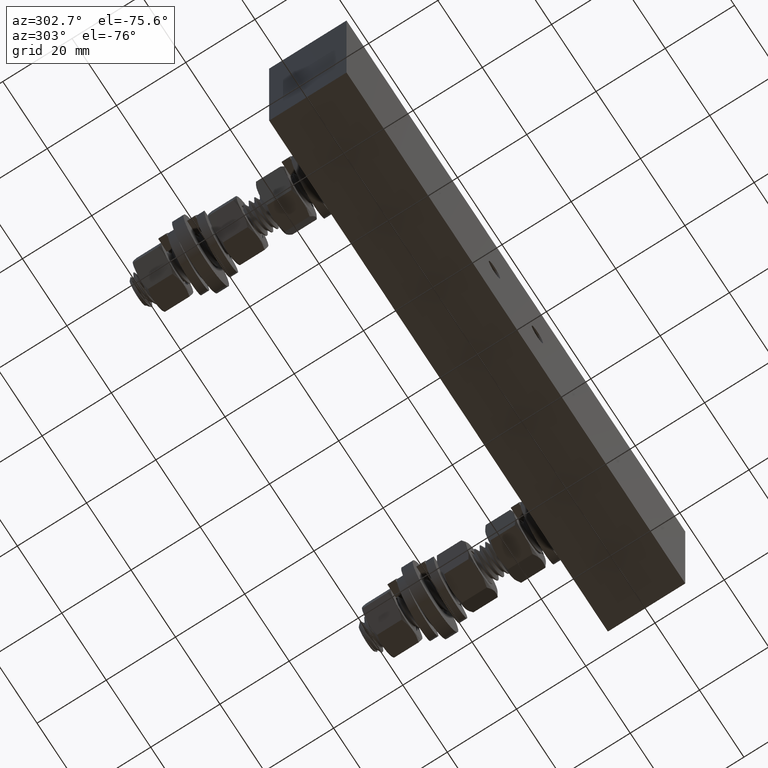
[diagram: clean part render]
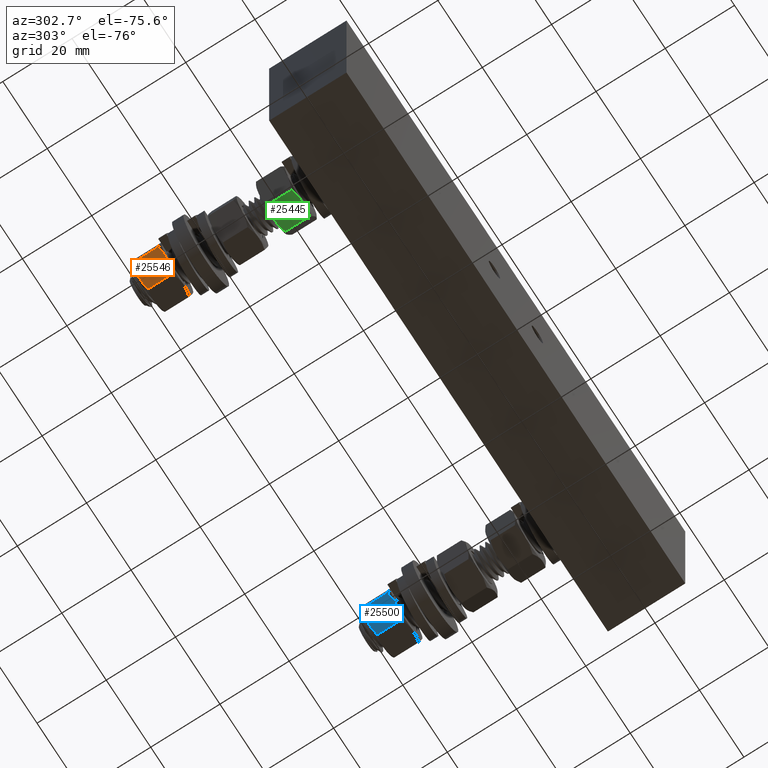
[diagram: same view with three faces highlighted in distinct colors, each labeled with its STEP entity id]
A machine part, auxiliary view with three faces highlighted in distinct colors.
Their STEP definitions:

[orange] entity #25546 — the highlighted planar face has unit normal (-0.625, 0, -0.7806).
#1130 = FACE_OUTER_BOUND ( 'NONE', #10861, .T. ) ;
#2067 = PLANE ( 'NONE',  #45207 ) ;
#2088 = CARTESIAN_POINT ( 'NONE',  ( -2.332541689422154000, 2.434250000000000000, -0.1180562415189819700 ) ) ;
#2089 = DIRECTION ( 'NONE',  ( -0.6250183642710821500, 9.478574107340274900E-017, -0.7806100462611924600 ) ) ;
#2090 = DIRECTION ( 'NONE',  ( 0.7806100462611924600, 1.255626949962396000E-017, -0.6250183642710821500 ) ) ;
#9694 = ORIENTED_EDGE ( 'NONE', *, *, #47259, .F. ) ;
#9696 = ORIENTED_EDGE ( 'NONE', *, *, #47339, .T. ) ;
#9698 = ORIENTED_EDGE ( 'NONE', *, *, #47338, .T. ) ;
#9700 = ORIENTED_EDGE ( 'NONE', *, *, #47344, .T. ) ;
#9702 = ORIENTED_EDGE ( 'NONE', *, *, #47337, .T. ) ;
#9704 = ORIENTED_EDGE ( 'NONE', *, *, #47336, .T. ) ;
#10861 = EDGE_LOOP ( 'NONE', ( #9694, #9696, #9698, #9700, #9702, #9704 ) ) ;
#16932 = B_SPLINE_CURVE_WITH_KNOTS ( 'NONE', 3,
 ( #30532, #30581, #30592, #30594, #30596, #30598, #30600, #30602 ),
 .UNSPECIFIED., .F., .F.,
 ( 4, 2, 2, 4 ),
 ( 0.004173502162683385800, 0.005212917775739006100, 0.006252333388794627200, 0.008331164614905871300 ),
 .UNSPECIFIED. ) ;
#16933 = B_SPLINE_CURVE_WITH_KNOTS ( 'NONE', 3,
 ( #30583, #30524, #30609, #30611, #30613, #30615 ),
 .UNSPECIFIED., .F., .F.,
 ( 4, 2, 4 ),
 ( 2.380732342954397900E-007, 0.002086870117958840400, 0.004173502162683385800 ),
 .UNSPECIFIED. ) ;
#16934 = B_SPLINE_CURVE_WITH_KNOTS ( 'NONE', 3,
 ( #30604, #30607, #30622, #30624, #30626, #30628, #30630, #30632 ),
 .UNSPECIFIED., .F., .F.,
 ( 4, 2, 2, 4 ),
 ( 0.004173502162683378900, 0.005212917775739005200, 0.006252333388794632400, 0.008331164614905881700 ),
 .UNSPECIFIED. ) ;
#16935 = B_SPLINE_CURVE_WITH_KNOTS ( 'NONE', 3,
 ( #30620, #30618, #30639, #30641, #30643, #30645 ),
 .UNSPECIFIED., .F., .F.,
 ( 4, 2, 4 ),
 ( 2.380732343026794600E-007, 0.002086870117958840800, 0.004173502162683378900 ),
 .UNSPECIFIED. ) ;
#20271 = CARTESIAN_POINT ( 'NONE',  ( -2.332541689422154000, 2.409129763209582700, -0.1180562415189819700 ) ) ;
#20311 = CARTESIAN_POINT ( 'NONE',  ( -2.079031140480327400, 2.131245236790417300, -0.3210369095029391700 ) ) ;
#20426 = CARTESIAN_POINT ( 'NONE',  ( -2.205786414951241200, 2.434250000000000000, -0.2195465755109604600 ) ) ;
#23251 = VERTEX_POINT ( 'NONE', #40048 ) ;
#23267 = VERTEX_POINT ( 'NONE', #40062 ) ;
#23312 = VERTEX_POINT ( 'NONE', #40072 ) ;
#25546 = ADVANCED_FACE ( 'NONE', ( #1130 ), #2067, .T. ) ;
#29481 = LINE ( 'NONE', #29996, #29486 ) ;
#29486 = VECTOR ( 'NONE', #29997, 39.37007874015748100 ) ;
#29618 = LINE ( 'NONE', #30703, #29623 ) ;
#29623 = VECTOR ( 'NONE', #30706, 39.37007874015748100 ) ;
#29996 = CARTESIAN_POINT ( 'NONE',  ( -2.332541689422154000, 2.434250000000000000, -0.1180562415189819700 ) ) ;
#29997 = DIRECTION ( 'NONE',  ( -5.868244258577792700E-017, -1.000000000000000000, -6.938893903907229600E-017 ) ) ;
#30524 = CARTESIAN_POINT ( 'NONE',  ( -2.099766625225969500, 2.123577107385060000, -0.3044344345281895200 ) ) ;
#30532 = CARTESIAN_POINT ( 'NONE',  ( -2.205786414951241200, 2.106125000000000000, -0.2195465755109605200 ) ) ;
#30581 = CARTESIAN_POINT ( 'NONE',  ( -2.216543728760304700, 2.106125000000000000, -0.2109334162093419200 ) ) ;
#30583 = CARTESIAN_POINT ( 'NONE',  ( -2.079031140480327400, 2.131245236790417300, -0.3210369095029391700 ) ) ;
#30592 = CARTESIAN_POINT ( 'NONE',  ( -2.227349284707564900, 2.106718749170750600, -0.2022816304226438000 ) ) ;
#30594 = CARTESIAN_POINT ( 'NONE',  ( -2.248724929352873000, 2.109016489356584600, -0.1851665926192740400 ) ) ;
#30596 = CARTESIAN_POINT ( 'NONE',  ( -2.259341258746271600, 2.110718271613474300, -0.1766663166315307300 ) ) ;
#30598 = CARTESIAN_POINT ( 'NONE',  ( -2.291001691835185200, 2.117281866138646300, -0.1513164608410177700 ) ) ;
#30600 = CARTESIAN_POINT ( 'NONE',  ( -2.311857974111161800, 2.123596252089377900, -0.1346172657751305800 ) ) ;
#30602 = CARTESIAN_POINT ( 'NONE',  ( -2.332541689422154000, 2.131245236790417300, -0.1180562415189819900 ) ) ;
#30604 = CARTESIAN_POINT ( 'NONE',  ( -2.205786414951241200, 2.434250000000000000, -0.2195465755109604600 ) ) ;
#30607 = CARTESIAN_POINT ( 'NONE',  ( -2.195029101142178500, 2.434250000000000900, -0.2281597348125789800 ) ) ;
#30609 = CARTESIAN_POINT ( 'NONE',  ( -2.120653575675893100, 2.117259705138562900, -0.2877106840879425400 ) ) ;
#30611 = CARTESIAN_POINT ( 'NONE',  ( -2.162864157763472400, 2.108519096647488900, -0.2539135415868049600 ) ) ;
#30613 = CARTESIAN_POINT ( 'NONE',  ( -2.184191053647054100, 2.106125000000000000, -0.2368375359115259800 ) ) ;
#30615 = CARTESIAN_POINT ( 'NONE',  ( -2.205786414951241200, 2.106125000000000000, -0.2195465755109605200 ) ) ;
#30618 = CARTESIAN_POINT ( 'NONE',  ( -2.311806204676511100, 2.416797892614940000, -0.1346587164937314800 ) ) ;
#30620 = CARTESIAN_POINT ( 'NONE',  ( -2.332541689422154000, 2.409129763209582700, -0.1180562415189819700 ) ) ;
#30622 = CARTESIAN_POINT ( 'NONE',  ( -2.184223545194917000, 2.433656250829249400, -0.2368115205992770400 ) ) ;
#30624 = CARTESIAN_POINT ( 'NONE',  ( -2.162847900549608800, 2.431358510643415000, -0.2539265584026468300 ) ) ;
#30626 = CARTESIAN_POINT ( 'NONE',  ( -2.152231571156209400, 2.429656728386524900, -0.2624268343903901100 ) ) ;
#30628 = CARTESIAN_POINT ( 'NONE',  ( -2.120571138067297100, 2.423093133861353300, -0.2877766901809032400 ) ) ;
#30630 = CARTESIAN_POINT ( 'NONE',  ( -2.099714855791319700, 2.416778747910621700, -0.3044758852467904200 ) ) ;
#30632 = CARTESIAN_POINT ( 'NONE',  ( -2.079031140480327400, 2.409129763209582700, -0.3210369095029391700 ) ) ;
#30639 = CARTESIAN_POINT ( 'NONE',  ( -2.290919254226588800, 2.423115294861437200, -0.1513824669339785000 ) ) ;
#30641 = CARTESIAN_POINT ( 'NONE',  ( -2.248708672139009500, 2.431855903352511100, -0.1851796094351158300 ) ) ;
#30643 = CARTESIAN_POINT ( 'NONE',  ( -2.227381776255428200, 2.434250000000000000, -0.2022556151103946900 ) ) ;
#30645 = CARTESIAN_POINT ( 'NONE',  ( -2.205786414951241200, 2.434250000000000000, -0.2195465755109604600 ) ) ;
#30703 = CARTESIAN_POINT ( 'NONE',  ( -2.079031140480327400, 2.434250000000000000, -0.3210369095029391700 ) ) ;
#30706 = DIRECTION ( 'NONE',  ( -5.868244258577792700E-017, -1.000000000000000000, -6.938893903907229600E-017 ) ) ;
#40048 = CARTESIAN_POINT ( 'NONE',  ( -2.205786414951241200, 2.106125000000000000, -0.2195465755109605200 ) ) ;
#40062 = CARTESIAN_POINT ( 'NONE',  ( -2.332541689422154000, 2.131245236790417300, -0.1180562415189819900 ) ) ;
#40072 = CARTESIAN_POINT ( 'NONE',  ( -2.079031140480327400, 2.409129763209582700, -0.3210369095029391700 ) ) ;
#44058 = VERTEX_POINT ( 'NONE', #20271 ) ;
#44100 = VERTEX_POINT ( 'NONE', #20311 ) ;
#44215 = VERTEX_POINT ( 'NONE', #20426 ) ;
#45207 = AXIS2_PLACEMENT_3D ( 'NONE', #2088, #2089, #2090 ) ;
#47259 = EDGE_CURVE ( 'NONE', #44058, #23267, #29481, .T. ) ;
#47336 = EDGE_CURVE ( 'NONE', #23251, #23267, #16932, .T. ) ;
#47337 = EDGE_CURVE ( 'NONE', #44100, #23251, #16933, .T. ) ;
#47338 = EDGE_CURVE ( 'NONE', #44215, #23312, #16934, .T. ) ;
#47339 = EDGE_CURVE ( 'NONE', #44058, #44215, #16935, .T. ) ;
#47344 = EDGE_CURVE ( 'NONE', #23312, #44100, #29618, .T. ) ;

[blue] entity #25500 — the highlighted planar face has unit normal (-0.625, 0, -0.7806).
#715 = PLANE ( 'NONE',  #44979 ) ;
#736 = CARTESIAN_POINT ( 'NONE',  ( 1.727458310577846000, 2.434250000000000000, -0.1180562415189815000 ) ) ;
#737 = DIRECTION ( 'NONE',  ( -0.6250183642710821500, 9.478574107340274900E-017, -0.7806100462611924600 ) ) ;
#738 = DIRECTION ( 'NONE',  ( 0.7806100462611924600, 1.255626949962396000E-017, -0.6250183642710821500 ) ) ;
#10368 = EDGE_LOOP ( 'NONE', ( #28462, #28351, #28498, #28451, #28417, #28528 ) ) ;
#16859 = B_SPLINE_CURVE_WITH_KNOTS ( 'NONE', 3,
 ( #29739, #29758, #29763, #29764, #29765, #29766, #29767, #29768 ),
 .UNSPECIFIED., .F., .F.,
 ( 4, 2, 2, 4 ),
 ( 0.004173502162683383200, 0.005212917775739004400, 0.006252333388794625500, 0.008331164614905871300 ),
 .UNSPECIFIED. ) ;
#16860 = B_SPLINE_CURVE_WITH_KNOTS ( 'NONE', 3,
 ( #29759, #29735, #29771, #29772, #29773, #29774 ),
 .UNSPECIFIED., .F., .F.,
 ( 4, 2, 4 ),
 ( 2.380732342954397900E-007, 0.002086870117958839100, 0.004173502162683383200 ),
 .UNSPECIFIED. ) ;
#16861 = B_SPLINE_CURVE_WITH_KNOTS ( 'NONE', 3,
 ( #29769, #29770, #29777, #29778, #29779, #29780, #29781, #29782 ),
 .UNSPECIFIED., .F., .F.,
 ( 4, 2, 2, 4 ),
 ( 0.004173502162683372800, 0.005212917775739000000, 0.006252333388794626400, 0.008331164614905876500 ),
 .UNSPECIFIED. ) ;
#16862 = B_SPLINE_CURVE_WITH_KNOTS ( 'NONE', 3,
 ( #29776, #29775, #29785, #29786, #29787, #29788 ),
 .UNSPECIFIED., .F., .F.,
 ( 4, 2, 4 ),
 ( 2.380732342954397900E-007, 0.002086870117958833900, 0.004173502162683372800 ),
 .UNSPECIFIED. ) ;
#20299 = CARTESIAN_POINT ( 'NONE',  ( 1.980968859519672400, 2.409129763209582700, -0.3210369095029386700 ) ) ;
#20350 = CARTESIAN_POINT ( 'NONE',  ( 1.854213585048759100, 2.434250000000000000, -0.2195465755109599600 ) ) ;
#20360 = CARTESIAN_POINT ( 'NONE',  ( 1.727458310577846000, 2.131245236790417300, -0.1180562415189815200 ) ) ;
#20460 = CARTESIAN_POINT ( 'NONE',  ( 1.727458310577846000, 2.409129763209582700, -0.1180562415189815000 ) ) ;
#20496 = CARTESIAN_POINT ( 'NONE',  ( 1.854213585048759100, 2.106125000000000000, -0.2195465755109599900 ) ) ;
#25021 = VERTEX_POINT ( 'NONE', #45742 ) ;
#25500 = ADVANCED_FACE ( 'NONE', ( #48948 ), #715, .T. ) ;
#28351 = ORIENTED_EDGE ( 'NONE', *, *, #47224, .T. ) ;
#28417 = ORIENTED_EDGE ( 'NONE', *, *, #47222, .T. ) ;
#28451 = ORIENTED_EDGE ( 'NONE', *, *, #47229, .T. ) ;
#28462 = ORIENTED_EDGE ( 'NONE', *, *, #47247, .F. ) ;
#28498 = ORIENTED_EDGE ( 'NONE', *, *, #47223, .T. ) ;
#28528 = ORIENTED_EDGE ( 'NONE', *, *, #47221, .T. ) ;
#29446 = LINE ( 'NONE', #29815, #29452 ) ;
#29452 = VECTOR ( 'NONE', #29816, 39.37007874015748100 ) ;
#29458 = LINE ( 'NONE', #29919, #29468 ) ;
#29468 = VECTOR ( 'NONE', #29920, 39.37007874015748100 ) ;
#29735 = CARTESIAN_POINT ( 'NONE',  ( 1.960233374774030100, 2.123577107385060000, -0.3044344345281890200 ) ) ;
#29739 = CARTESIAN_POINT ( 'NONE',  ( 1.854213585048759100, 2.106125000000000000, -0.2195465755109599900 ) ) ;
#29758 = CARTESIAN_POINT ( 'NONE',  ( 1.843456271239696200, 2.106125000000000000, -0.2109334162093415300 ) ) ;
#29759 = CARTESIAN_POINT ( 'NONE',  ( 1.980968859519672400, 2.131245236790417300, -0.3210369095029386700 ) ) ;
#29763 = CARTESIAN_POINT ( 'NONE',  ( 1.832650715292435600, 2.106718749170750600, -0.2022816304226433300 ) ) ;
#29764 = CARTESIAN_POINT ( 'NONE',  ( 1.811275070647127700, 2.109016489356584600, -0.1851665926192734800 ) ) ;
#29765 = CARTESIAN_POINT ( 'NONE',  ( 1.800658741253728300, 2.110718271613474300, -0.1766663166315303700 ) ) ;
#29766 = CARTESIAN_POINT ( 'NONE',  ( 1.768998308164814600, 2.117281866138646300, -0.1513164608410173500 ) ) ;
#29767 = CARTESIAN_POINT ( 'NONE',  ( 1.748142025888837600, 2.123596252089377900, -0.1346172657751300800 ) ) ;
#29768 = CARTESIAN_POINT ( 'NONE',  ( 1.727458310577846000, 2.131245236790417300, -0.1180562415189815200 ) ) ;
#29769 = CARTESIAN_POINT ( 'NONE',  ( 1.854213585048759100, 2.434250000000000000, -0.2195465755109599600 ) ) ;
#29770 = CARTESIAN_POINT ( 'NONE',  ( 1.864970898857823700, 2.434250000000000900, -0.2281597348125784000 ) ) ;
#29771 = CARTESIAN_POINT ( 'NONE',  ( 1.939346424324107200, 2.117259705138562900, -0.2877106840879419800 ) ) ;
#29772 = CARTESIAN_POINT ( 'NONE',  ( 1.897135842236527600, 2.108519096647488900, -0.2539135415868044600 ) ) ;
#29773 = CARTESIAN_POINT ( 'NONE',  ( 1.875808946352946600, 2.106125000000000000, -0.2368375359115256200 ) ) ;
#29774 = CARTESIAN_POINT ( 'NONE',  ( 1.854213585048759100, 2.106125000000000000, -0.2195465755109599900 ) ) ;
#29775 = CARTESIAN_POINT ( 'NONE',  ( 1.748193795323488700, 2.416797892614940000, -0.1346587164937309300 ) ) ;
#29776 = CARTESIAN_POINT ( 'NONE',  ( 1.727458310577846000, 2.409129763209582700, -0.1180562415189815000 ) ) ;
#29777 = CARTESIAN_POINT ( 'NONE',  ( 1.875776454805083300, 2.433656250829249400, -0.2368115205992764600 ) ) ;
#29778 = CARTESIAN_POINT ( 'NONE',  ( 1.897152099450391000, 2.431358510643415000, -0.2539265584026462700 ) ) ;
#29779 = CARTESIAN_POINT ( 'NONE',  ( 1.907768428843790200, 2.429656728386524900, -0.2624268343903896100 ) ) ;
#29780 = CARTESIAN_POINT ( 'NONE',  ( 1.939428861932704900, 2.423093133861353300, -0.2877766901809027900 ) ) ;
#29781 = CARTESIAN_POINT ( 'NONE',  ( 1.960285144208680600, 2.416778747910621700, -0.3044758852467898700 ) ) ;
#29782 = CARTESIAN_POINT ( 'NONE',  ( 1.980968859519672400, 2.409129763209582700, -0.3210369095029386700 ) ) ;
#29785 = CARTESIAN_POINT ( 'NONE',  ( 1.769080745773411500, 2.423115294861437200, -0.1513824669339779400 ) ) ;
#29786 = CARTESIAN_POINT ( 'NONE',  ( 1.811291327860990300, 2.431855903352511100, -0.1851796094351152400 ) ) ;
#29787 = CARTESIAN_POINT ( 'NONE',  ( 1.832618223744572500, 2.434250000000000000, -0.2022556151103942800 ) ) ;
#29788 = CARTESIAN_POINT ( 'NONE',  ( 1.854213585048759100, 2.434250000000000000, -0.2195465755109599600 ) ) ;
#29815 = CARTESIAN_POINT ( 'NONE',  ( 1.980968859519672400, 2.434250000000000000, -0.3210369095029386700 ) ) ;
#29816 = DIRECTION ( 'NONE',  ( -5.868244258577792700E-017, -1.000000000000000000, -6.938893903907229600E-017 ) ) ;
#29919 = CARTESIAN_POINT ( 'NONE',  ( 1.727458310577846000, 2.434250000000000000, -0.1180562415189815000 ) ) ;
#29920 = DIRECTION ( 'NONE',  ( -5.868244258577792700E-017, -1.000000000000000000, -6.938893903907229600E-017 ) ) ;
#44088 = VERTEX_POINT ( 'NONE', #20299 ) ;
#44139 = VERTEX_POINT ( 'NONE', #20350 ) ;
#44149 = VERTEX_POINT ( 'NONE', #20360 ) ;
#44249 = VERTEX_POINT ( 'NONE', #20460 ) ;
#44267 = VERTEX_POINT ( 'NONE', #20496 ) ;
#44979 = AXIS2_PLACEMENT_3D ( 'NONE', #736, #737, #738 ) ;
#45742 = CARTESIAN_POINT ( 'NONE',  ( 1.980968859519672400, 2.131245236790417300, -0.3210369095029386700 ) ) ;
#47221 = EDGE_CURVE ( 'NONE', #44267, #44149, #16859, .T. ) ;
#47222 = EDGE_CURVE ( 'NONE', #25021, #44267, #16860, .T. ) ;
#47223 = EDGE_CURVE ( 'NONE', #44139, #44088, #16861, .T. ) ;
#47224 = EDGE_CURVE ( 'NONE', #44249, #44139, #16862, .T. ) ;
#47229 = EDGE_CURVE ( 'NONE', #44088, #25021, #29446, .T. ) ;
#47247 = EDGE_CURVE ( 'NONE', #44249, #44149, #29458, .T. ) ;
#48948 = FACE_OUTER_BOUND ( 'NONE', #10368, .T. ) ;

[green] entity #25445 — the highlighted planar face has unit normal (0.1229, 0, -0.9924).
#6185 = B_SPLINE_CURVE_WITH_KNOTS ( 'NONE', 3,
 ( #46960, #46916, #46920, #46854, #46959, #46842 ),
 .UNSPECIFIED., .F., .F.,
 ( 4, 2, 4 ),
 ( 2.380732343017848300E-007, 0.002086870117958849900, 0.004173502162683397900 ),
 .UNSPECIFIED. ) ;
#10852 = EDGE_LOOP ( 'NONE', ( #25383, #25373, #25363, #18018, #23442, #18014 ) ) ;
#13412 = EDGE_CURVE ( 'NONE', #25167, #25251, #6185, .T. ) ;
#14185 = CARTESIAN_POINT ( 'NONE',  ( -2.130216819714770600, 1.013672892614941600, -0.2958112505774168600 ) ) ;
#14186 = CARTESIAN_POINT ( 'NONE',  ( -2.156578575390043700, 1.006004763209589200, -0.2990762682865857900 ) ) ;
#14189 = CARTESIAN_POINT ( 'NONE',  ( -2.103662500328622900, 1.019990294861438300, -0.2925223830179695100 ) ) ;
#14190 = CARTESIAN_POINT ( 'NONE',  ( -2.049998693306332800, 1.028730903352511800, -0.2858758879048568500 ) ) ;
#14191 = CARTESIAN_POINT ( 'NONE',  ( -2.022885055718809600, 1.031125000000001000, -0.2825177463617247800 ) ) ;
#14192 = CARTESIAN_POINT ( 'NONE',  ( -1.995430108539923100, 1.031125000000000500, -0.2791173321462478400 ) ) ;
#15023 = LINE ( 'NONE', #15542, #15025 ) ;
#15025 = VECTOR ( 'NONE', #15550, 39.37007874015748100 ) ;
#15436 = CARTESIAN_POINT ( 'NONE',  ( -2.009106262333065600, 0.7030000000000002900, -0.2808111830747612700 ) ) ;
#15437 = CARTESIAN_POINT ( 'NONE',  ( -1.995430108539923100, 0.7030000000000006200, -0.2791173321462478400 ) ) ;
#15447 = CARTESIAN_POINT ( 'NONE',  ( -2.022843748063996000, 0.7035937491707512400, -0.2825126302296222500 ) ) ;
#15448 = CARTESIAN_POINT ( 'NONE',  ( -2.050019361677732000, 0.7058914893565847400, -0.2858784477722445800 ) ) ;
#15449 = CARTESIAN_POINT ( 'NONE',  ( -2.063516276993194100, 0.7075932716134751800, -0.2875500992383632200 ) ) ;
#15450 = CARTESIAN_POINT ( 'NONE',  ( -2.103767306178258200, 0.7141568661386475900, -0.2925353636767426000 ) ) ;
#15451 = CARTESIAN_POINT ( 'NONE',  ( -2.130282636029390700, 0.7204712520893789000, -0.2958194022132727400 ) ) ;
#15452 = CARTESIAN_POINT ( 'NONE',  ( -2.156578575390049500, 0.7281202367904179300, -0.2990762682865785200 ) ) ;
#15520 = CARTESIAN_POINT ( 'NONE',  ( -1.995430108539923100, 1.031125000000000500, -0.2791173321462478400 ) ) ;
#15522 = CARTESIAN_POINT ( 'NONE',  ( -1.981753954746780400, 1.031125000000001000, -0.2774234812177334100 ) ) ;
#15532 = CARTESIAN_POINT ( 'NONE',  ( -1.968016469015850400, 1.030531250829250100, -0.2757220340628724900 ) ) ;
#15533 = CARTESIAN_POINT ( 'NONE',  ( -1.940840855402115000, 1.028233510643416600, -0.2723562165202500500 ) ) ;
#15534 = CARTESIAN_POINT ( 'NONE',  ( -1.927343940086652100, 1.026531728386526100, -0.2706845650541314700 ) ) ;
#15535 = CARTESIAN_POINT ( 'NONE',  ( -1.887092910901588100, 1.019968133861353800, -0.2656993006157522000 ) ) ;
#15536 = CARTESIAN_POINT ( 'NONE',  ( -1.860577581050456100, 1.013653747910622500, -0.2624152620792219400 ) ) ;
#15537 = CARTESIAN_POINT ( 'NONE',  ( -1.834281641689796700, 1.006004763209583200, -0.2591583960059161700 ) ) ;
#15542 = CARTESIAN_POINT ( 'NONE',  ( -2.156578575390049500, 1.031125000000000500, -0.2990762682865785200 ) ) ;
#15550 = DIRECTION ( 'NONE',  ( 4.319190404639128300E-017, -1.000000000000000000, -4.163336342344337000E-017 ) ) ;
#18014 = ORIENTED_EDGE ( 'NONE', *, *, #26571, .T. ) ;
#18018 = ORIENTED_EDGE ( 'NONE', *, *, #44379, .T. ) ;
#21815 = DIRECTION ( 'NONE',  ( 4.319190404639128300E-017, -1.000000000000000000, -4.163336342344337000E-017 ) ) ;
#21816 = CARTESIAN_POINT ( 'NONE',  ( -1.834281641689796700, 1.031125000000000500, -0.2591583960059161700 ) ) ;
#23442 = ORIENTED_EDGE ( 'NONE', *, *, #13412, .T. ) ;
#25135 = VERTEX_POINT ( 'NONE', #45854 ) ;
#25167 = VERTEX_POINT ( 'NONE', #45886 ) ;
#25185 = VERTEX_POINT ( 'NONE', #45904 ) ;
#25240 = VERTEX_POINT ( 'NONE', #45959 ) ;
#25249 = VERTEX_POINT ( 'NONE', #45968 ) ;
#25251 = VERTEX_POINT ( 'NONE', #45970 ) ;
#25363 = ORIENTED_EDGE ( 'NONE', *, *, #26583, .T. ) ;
#25373 = ORIENTED_EDGE ( 'NONE', *, *, #26544, .T. ) ;
#25383 = ORIENTED_EDGE ( 'NONE', *, *, #26586, .F. ) ;
#25445 = ADVANCED_FACE ( 'NONE', ( #46805 ), #48545, .T. ) ;
#26544 = EDGE_CURVE ( 'NONE', #25240, #25249, #43435, .T. ) ;
#26571 = EDGE_CURVE ( 'NONE', #25251, #25135, #43463, .T. ) ;
#26583 = EDGE_CURVE ( 'NONE', #25249, #25185, #43485, .T. ) ;
#26586 = EDGE_CURVE ( 'NONE', #25240, #25135, #15023, .T. ) ;
#29208 = LINE ( 'NONE', #21816, #29210 ) ;
#29210 = VECTOR ( 'NONE', #21815, 39.37007874015748100 ) ;
#43435 = B_SPLINE_CURVE_WITH_KNOTS ( 'NONE', 3,
 ( #14186, #14185, #14189, #14190, #14191, #14192 ),
 .UNSPECIFIED., .F., .F.,
 ( 4, 2, 4 ),
 ( 2.380732344357663100E-007, 0.002086870117958909800, 0.004173502162683383200 ),
 .UNSPECIFIED. ) ;
#43463 = B_SPLINE_CURVE_WITH_KNOTS ( 'NONE', 3,
 ( #15437, #15436, #15447, #15448, #15449, #15450, #15451, #15452 ),
 .UNSPECIFIED., .F., .F.,
 ( 4, 2, 2, 4 ),
 ( 0.004173502162683397900, 0.005212917775739025200, 0.006252333388794651500, 0.008331164614905906000 ),
 .UNSPECIFIED. ) ;
#43485 = B_SPLINE_CURVE_WITH_KNOTS ( 'NONE', 3,
 ( #15520, #15522, #15532, #15533, #15534, #15535, #15536, #15537 ),
 .UNSPECIFIED., .F., .F.,
 ( 4, 2, 2, 4 ),
 ( 0.004173502162683383200, 0.005212917775739012200, 0.006252333388794641100, 0.008331164614905899000 ),
 .UNSPECIFIED. ) ;
#44379 = EDGE_CURVE ( 'NONE', #25185, #25167, #29208, .T. ) ;
#44707 = AXIS2_PLACEMENT_3D ( 'NONE', #48567, #48568, #48569 ) ;
#45854 = CARTESIAN_POINT ( 'NONE',  ( -2.156578575390049500, 0.7281202367904179300, -0.2990762682865785200 ) ) ;
#45886 = CARTESIAN_POINT ( 'NONE',  ( -1.834281641689796700, 0.7281202367904181500, -0.2591583960059161700 ) ) ;
#45904 = CARTESIAN_POINT ( 'NONE',  ( -1.834281641689796700, 1.006004763209583200, -0.2591583960059161700 ) ) ;
#45959 = CARTESIAN_POINT ( 'NONE',  ( -2.156578575390043700, 1.006004763209589200, -0.2990762682865857900 ) ) ;
#45968 = CARTESIAN_POINT ( 'NONE',  ( -1.995430108539923100, 1.031125000000000500, -0.2791173321462478400 ) ) ;
#45970 = CARTESIAN_POINT ( 'NONE',  ( -1.995430108539923100, 0.7030000000000006200, -0.2791173321462478400 ) ) ;
#46805 = FACE_OUTER_BOUND ( 'NONE', #10852, .T. ) ;
#46842 = CARTESIAN_POINT ( 'NONE',  ( -1.995430108539923100, 0.7030000000000006200, -0.2791173321462478400 ) ) ;
#46854 = CARTESIAN_POINT ( 'NONE',  ( -1.940861523773511800, 0.7053940966474892000, -0.2723587763876376100 ) ) ;
#46916 = CARTESIAN_POINT ( 'NONE',  ( -1.860643397365070700, 0.7204521073850609400, -0.2624234137150771600 ) ) ;
#46920 = CARTESIAN_POINT ( 'NONE',  ( -1.887197716751219900, 0.7141347051385639200, -0.2657122812745247900 ) ) ;
#46959 = CARTESIAN_POINT ( 'NONE',  ( -1.967975161361035700, 0.7030000000000004000, -0.2757169179307698600 ) ) ;
#46960 = CARTESIAN_POINT ( 'NONE',  ( -1.834281641689796700, 0.7281202367904181500, -0.2591583960059161700 ) ) ;
#48545 = PLANE ( 'NONE',  #44707 ) ;
#48567 = CARTESIAN_POINT ( 'NONE',  ( -2.156578575390049500, 1.031125000000000500, -0.2990762682865785200 ) ) ;
#48568 = DIRECTION ( 'NONE',  ( 0.1229151696358264800, 5.315369004557915000E-017, -0.9924171809644349900 ) ) ;
#48569 = DIRECTION ( 'NONE',  ( 0.9924171809644349900, 4.671298630943340000E-017, 0.1229151696358264800 ) ) ;